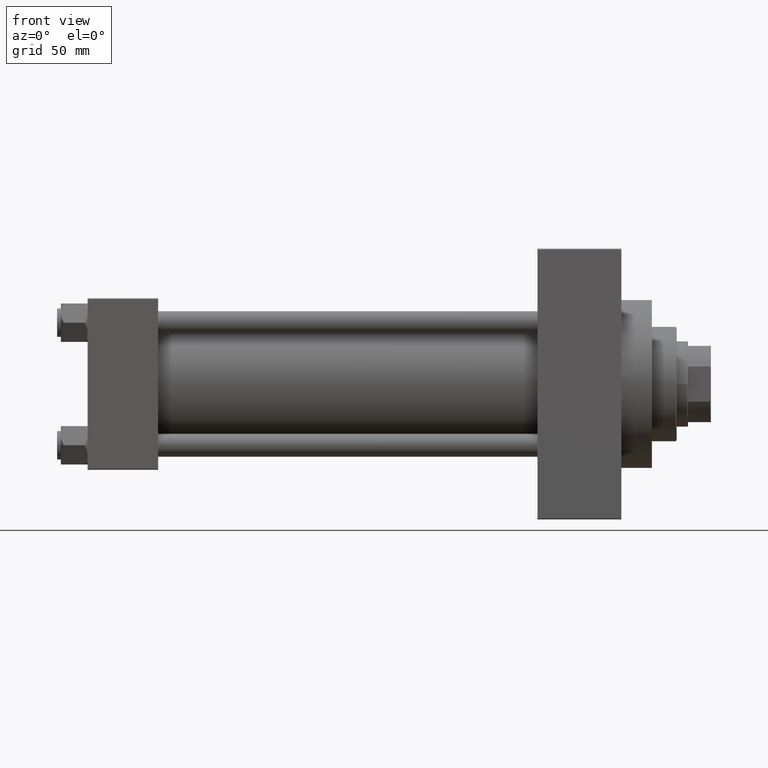
[diagram: clean part render]
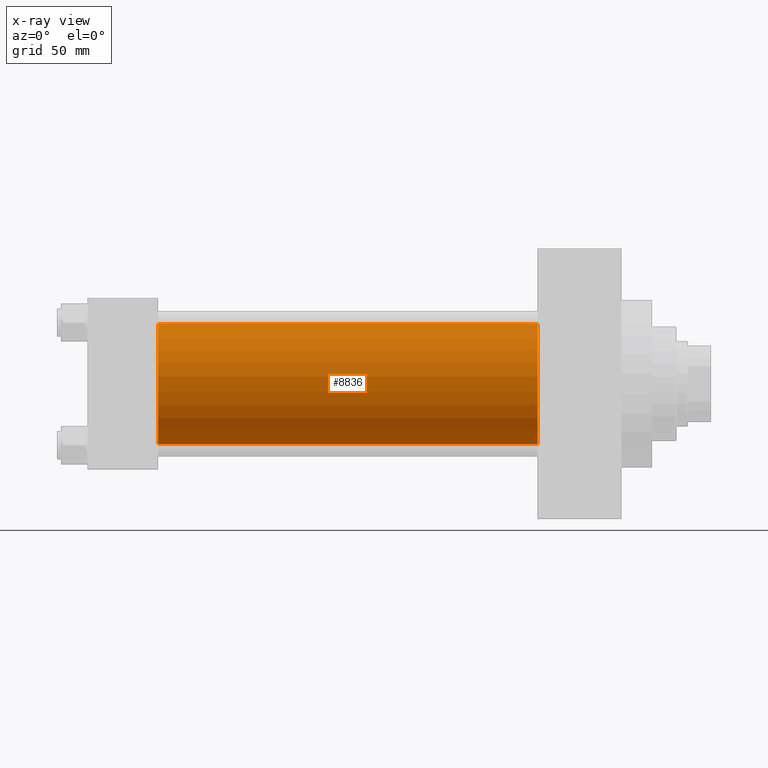
[diagram: x-ray — body ghosted, one internal face saturated and labeled with its STEP entity id]
A machine part, front view, then the same camera in x-ray: the body is ghosted and one INTERNAL B-rep face — a face not visible from any outside direction — is saturated and labeled: STEP entity #8836.
In plain terms, the highlighted cylindrical surface (partial cylindrical patch) has radius 31.5 mm, axis along (-1, -0, -0).
Its self-contained STEP definition (entity closure, byte-faithful):
#1957 = DIRECTION ( 'NONE',  ( 0.000000000000000000, 0.000000000000000000, 1.000000000000000000 ) ) ;
#3309 = LINE ( 'NONE', #44434, #32136 ) ;
#3557 = VERTEX_POINT ( 'NONE', #5089 ) ;
#3943 = CIRCLE ( 'NONE', #15078, 31.50000000000000000 ) ;
#5089 = CARTESIAN_POINT ( 'NONE',  ( 236.0000000000000284, -2.602085213965210642E-15, 31.50000000000000000 ) ) ;
#5163 = AXIS2_PLACEMENT_3D ( 'NONE', #12908, #21141, #1957 ) ;
#6547 = CARTESIAN_POINT ( 'NONE',  ( 37.00000000000000000, -2.602085213965210642E-15, 31.50000000000000000 ) ) ;
#8836 = ADVANCED_FACE ( 'NONE', ( #23165 ), #13652, .F. ) ;
#9648 = ORIENTED_EDGE ( 'NONE', *, *, #48513, .F. ) ;
#10907 = ORIENTED_EDGE ( 'NONE', *, *, #36512, .F. ) ;
#11025 = DIRECTION ( 'NONE',  ( -1.000000000000000000, -0.000000000000000000, -0.000000000000000000 ) ) ;
#11443 = EDGE_CURVE ( 'NONE', #41391, #22638, #19780, .T. ) ;
#11647 = ORIENTED_EDGE ( 'NONE', *, *, #40814, .T. ) ;
#12908 = CARTESIAN_POINT ( 'NONE',  ( 236.0000000000000284, -2.602085213965210642E-15, 0.000000000000000000 ) ) ;
#13652 = CYLINDRICAL_SURFACE ( 'NONE', #5163, 31.50000000000000000 ) ;
#13903 = VECTOR ( 'NONE', #24688, 1000.000000000000000 ) ;
#15078 = AXIS2_PLACEMENT_3D ( 'NONE', #48831, #45097, #15203 ) ;
#15203 = DIRECTION ( 'NONE',  ( 0.000000000000000000, 0.000000000000000000, -1.000000000000000000 ) ) ;
#19780 = LINE ( 'NONE', #20713, #13903 ) ;
#20713 = CARTESIAN_POINT ( 'NONE',  ( 236.0000000000000284, 1.255552203348951850E-15, -31.50000000000000000 ) ) ;
#21141 = DIRECTION ( 'NONE',  ( -1.000000000000000000, -0.000000000000000000, -0.000000000000000000 ) ) ;
#21476 = CARTESIAN_POINT ( 'NONE',  ( 37.00000000000000000, 1.255552203348951850E-15, -31.50000000000000000 ) ) ;
#22638 = VERTEX_POINT ( 'NONE', #21476 ) ;
#22642 = CIRCLE ( 'NONE', #42531, 31.50000000000000000 ) ;
#23165 = FACE_OUTER_BOUND ( 'NONE', #46335, .T. ) ;
#24688 = DIRECTION ( 'NONE',  ( -1.000000000000000000, -0.000000000000000000, -0.000000000000000000 ) ) ;
#25448 = VERTEX_POINT ( 'NONE', #6547 ) ;
#26562 = ORIENTED_EDGE ( 'NONE', *, *, #11443, .T. ) ;
#29757 = DIRECTION ( 'NONE',  ( 0.000000000000000000, 0.000000000000000000, -1.000000000000000000 ) ) ;
#29997 = CARTESIAN_POINT ( 'NONE',  ( 236.0000000000000284, -2.602085213965210642E-15, 0.000000000000000000 ) ) ;
#32136 = VECTOR ( 'NONE', #11025, 1000.000000000000000 ) ;
#34832 = CARTESIAN_POINT ( 'NONE',  ( 236.0000000000000284, 1.255552203348951850E-15, -31.50000000000000000 ) ) ;
#36512 = EDGE_CURVE ( 'NONE', #3557, #25448, #3309, .T. ) ;
#40814 = EDGE_CURVE ( 'NONE', #3557, #41391, #22642, .T. ) ;
#41391 = VERTEX_POINT ( 'NONE', #34832 ) ;
#42531 = AXIS2_PLACEMENT_3D ( 'NONE', #29997, #45196, #29757 ) ;
#44434 = CARTESIAN_POINT ( 'NONE',  ( 236.0000000000000284, -2.602085213965210642E-15, 31.50000000000000000 ) ) ;
#45097 = DIRECTION ( 'NONE',  ( 1.000000000000000000, 0.000000000000000000, 0.000000000000000000 ) ) ;
#45196 = DIRECTION ( 'NONE',  ( 1.000000000000000000, 0.000000000000000000, 0.000000000000000000 ) ) ;
#46335 = EDGE_LOOP ( 'NONE', ( #11647, #26562, #9648, #10907 ) ) ;
#48513 = EDGE_CURVE ( 'NONE', #25448, #22638, #3943, .T. ) ;
#48831 = CARTESIAN_POINT ( 'NONE',  ( 37.00000000000000000, -2.602085213965210642E-15, 0.000000000000000000 ) ) ;